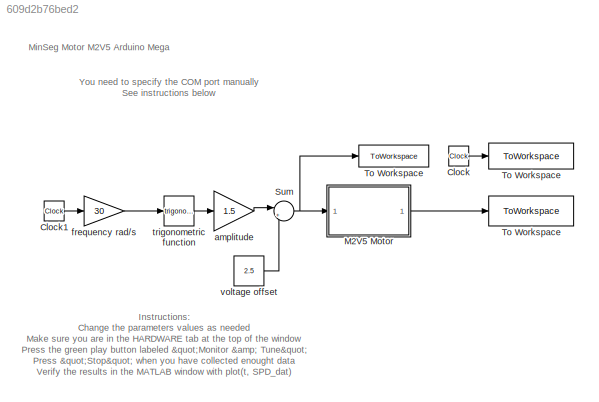
MODEL slx_609d2b76bed2
KIND model
CONFIG AbsTol = auto
CONFIG EnableMultiTasking = on
CONFIG FixedStep = .004
CONFIG MaxStep = auto
CONFIG MinStep = auto
CONFIG RelTol = 1e-3
CONFIG SampleTimeConstraint = Unconstrained
CONFIG SolverName = FixedStepDiscrete
CONFIG StartTime = 0.0
CONFIG StopTime = inf
BLOCK [Clock] Clock
BLOCK [Clock] Clock1
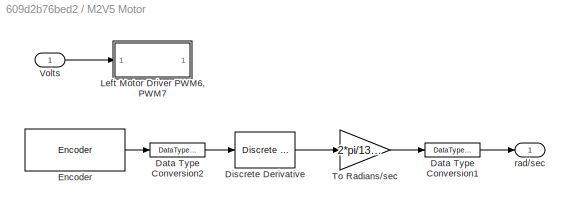
BLOCK [SubSystem] M2V5 Motor
BLOCK [DataTypeConversion] M2V5 Motor/Data Type Conversion1
  OutDataTypeStr = single
  RndMeth = Floor
  SaturateOnIntegerOverflow = off
BLOCK [DataTypeConversion] M2V5 Motor/Data Type Conversion2
  OutDataTypeStr = double
  RndMeth = Floor
  SaturateOnIntegerOverflow = off
BLOCK [Reference] M2V5 Motor/Discrete Derivative  REF=simulink/Discrete/Discrete Derivative
  SourceBlock = simulink/Discrete/Discrete Derivative
  SourceType = Discrete Derivative
BLOCK [Reference] M2V5 Motor/Encoder  REF=arduinosensorlib/Encoder
  SourceBlock = arduinosensorlib/Encoder
  SourceType = Arduino Rotary Encoder
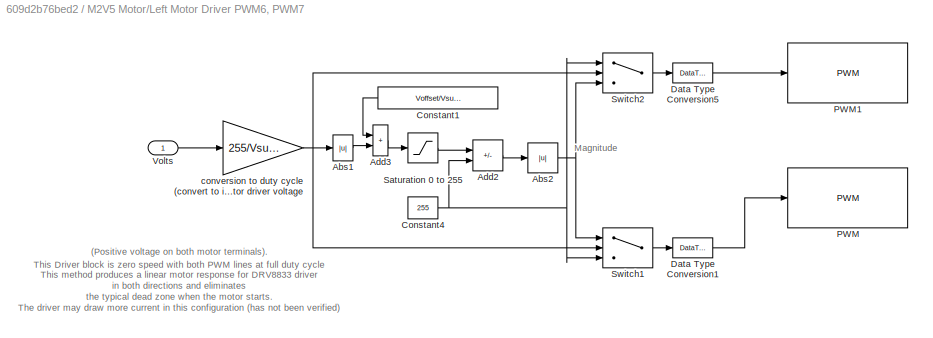
BLOCK [SubSystem] M2V5 Motor/Left Motor Driver PWM6, PWM7
BLOCK [Abs] M2V5 Motor/Left Motor Driver PWM6, PWM7/Abs1
  SaturateOnIntegerOverflow = off
BLOCK [Abs] M2V5 Motor/Left Motor Driver PWM6, PWM7/Abs2
  SaturateOnIntegerOverflow = off
BLOCK [Sum] M2V5 Motor/Left Motor Driver PWM6, PWM7/Add2
  IconShape = rectangular
  Inputs = -+
BLOCK [Sum] M2V5 Motor/Left Motor Driver PWM6, PWM7/Add3
  IconShape = rectangular
BLOCK [Constant] M2V5 Motor/Left Motor Driver PWM6, PWM7/Constant1
  NameLocation = top
  Value = Voffset/Vsupply*255
BLOCK [Constant] M2V5 Motor/Left Motor Driver PWM6, PWM7/Constant4
  Value = 255
BLOCK [DataTypeConversion] M2V5 Motor/Left Motor Driver PWM6, PWM7/Data Type Conversion1
  OutDataTypeStr = uint8
  RndMeth = Floor
  SaturateOnIntegerOverflow = off
BLOCK [DataTypeConversion] M2V5 Motor/Left Motor Driver PWM6, PWM7/Data Type Conversion5
  OutDataTypeStr = uint8
  RndMeth = Floor
  SaturateOnIntegerOverflow = off
BLOCK [Reference] M2V5 Motor/Left Motor Driver PWM6, PWM7/PWM  REF=arduinolib/PWM
  SourceBlock = arduinolib/PWM
  SourceType = Arduino PWM
BLOCK [Reference] M2V5 Motor/Left Motor Driver PWM6, PWM7/PWM1  REF=arduinolib/PWM
  SourceBlock = arduinolib/PWM
  SourceType = Arduino PWM
BLOCK [Saturate] M2V5 Motor/Left Motor Driver PWM6, PWM7/Saturation 0 to 255
  LowerLimit = 0
  UpperLimit = 255
BLOCK [Switch] M2V5 Motor/Left Motor Driver PWM6, PWM7/Switch1
  InputSameDT = off
  SaturateOnIntegerOverflow = off
BLOCK [Switch] M2V5 Motor/Left Motor Driver PWM6, PWM7/Switch2
  InputSameDT = off
  SaturateOnIntegerOverflow = off
BLOCK [Inport] M2V5 Motor/Left Motor Driver PWM6, PWM7/Volts
BLOCK [Gain] M2V5 Motor/Left Motor Driver PWM6, PWM7/conversion to duty cycle (convert to int) denominator is motor driver voltage
  Gain = 255/Vsupply
  OutDataTypeStr = int16
BLOCK [Gain] M2V5 Motor/To Radians//sec
  Gain = 2*pi/1336
  NameLocation = top
BLOCK [Inport] M2V5 Motor/Volts
BLOCK [Outport] M2V5 Motor/rad//sec
BLOCK [Sum] Sum
  Inputs = |++
BLOCK [ToWorkspace] To Workspace
  FixptAsFi = on
  MaxDataPoints = inf
  SampleTime = -1
  Save2DSignal = 2-D array (concatenate along first dimension)
  VariableName = SPD_dat
BLOCK [ToWorkspace] To Workspace 
  FixptAsFi = on
  MaxDataPoints = inf
  SampleTime = -1
  Save2DSignal = 2-D array (concatenate along first dimension)
  VariableName = t
BLOCK [ToWorkspace] To Workspace  
  FixptAsFi = on
  MaxDataPoints = inf
  SampleTime = -1
  Save2DSignal = 2-D array (concatenate along first dimension)
  VariableName = V_in
BLOCK [Gain] amplitude
  Gain = 1.5
BLOCK [Gain] frequency rad//s 
  Gain = 30
BLOCK [Trigonometry] trigonometric function 
BLOCK [Constant] voltage offset 
  Value = 2.5
ANNOTATION (root): Instructions : Change the parameters values as needed Make sure you are in the HARDWARE tab at the top of the window Press the green play button labeled " Monitor & Tune " Press "Stop" when you have collected enought data Verify the results in the MATLAB window with plot(t, SPD_dat)
ANNOTATION (root): You need to specify the COM port manually See instructions below
ANNOTATION (root): MinSeg Motor M2V5 Arduino Mega
ANNOTATION M2V5 Motor/Left Motor Driver PWM6, PWM7: Magnitude
ANNOTATION M2V5 Motor/Left Motor Driver PWM6, PWM7: This Driver block is zero speed with both PWM lines at full duty cycle (Positive voltage on both motor terminals). This method produces a linear motor response for DRV8833 driver in both directions and eliminates the typical dead zone when the motor starts. The driver may draw more current in this configuration (has not been verified) The SN754410 driver this has no effect, so the driver could alt...<+76ch>
LINE Clock1:1 -> frequency rad//s :1
LINE Clock:1 -> To Workspace :1
LINE M2V5 Motor/Data Type Conversion1:1 -> M2V5 Motor/rad//sec:1
LINE M2V5 Motor/Data Type Conversion2:1 -> M2V5 Motor/Discrete Derivative:1
LINE M2V5 Motor/Discrete Derivative:1 -> M2V5 Motor/To Radians//sec:1
LINE M2V5 Motor/Encoder:1 -> M2V5 Motor/Data Type Conversion2:1
LINE M2V5 Motor/Left Motor Driver PWM6, PWM7/Abs1:1 -> M2V5 Motor/Left Motor Driver PWM6, PWM7/Add3:2
NET M2V5 Motor/Left Motor Driver PWM6, PWM7/Abs2:1 -> M2V5 Motor/Left Motor Driver PWM6, PWM7/Switch1:1, M2V5 Motor/Left Motor Driver PWM6, PWM7/Switch2:3
LINE M2V5 Motor/Left Motor Driver PWM6, PWM7/Add2:1 -> M2V5 Motor/Left Motor Driver PWM6, PWM7/Abs2:1
LINE M2V5 Motor/Left Motor Driver PWM6, PWM7/Add3:1 -> M2V5 Motor/Left Motor Driver PWM6, PWM7/Saturation 0 to 255:1
LINE M2V5 Motor/Left Motor Driver PWM6, PWM7/Constant1:1 -> M2V5 Motor/Left Motor Driver PWM6, PWM7/Add3:1
NET M2V5 Motor/Left Motor Driver PWM6, PWM7/Constant4:1 -> M2V5 Motor/Left Motor Driver PWM6, PWM7/Add2:2, M2V5 Motor/Left Motor Driver PWM6, PWM7/Switch1:3, M2V5 Motor/Left Motor Driver PWM6, PWM7/Switch2:1
LINE M2V5 Motor/Left Motor Driver PWM6, PWM7/Data Type Conversion1:1 -> M2V5 Motor/Left Motor Driver PWM6, PWM7/PWM:1
LINE M2V5 Motor/Left Motor Driver PWM6, PWM7/Data Type Conversion5:1 -> M2V5 Motor/Left Motor Driver PWM6, PWM7/PWM1:1
LINE M2V5 Motor/Left Motor Driver PWM6, PWM7/Saturation 0 to 255:1 -> M2V5 Motor/Left Motor Driver PWM6, PWM7/Add2:1
LINE M2V5 Motor/Left Motor Driver PWM6, PWM7/Switch1:1 -> M2V5 Motor/Left Motor Driver PWM6, PWM7/Data Type Conversion1:1
LINE M2V5 Motor/Left Motor Driver PWM6, PWM7/Switch2:1 -> M2V5 Motor/Left Motor Driver PWM6, PWM7/Data Type Conversion5:1
LINE M2V5 Motor/Left Motor Driver PWM6, PWM7/Volts:1 -> M2V5 Motor/Left Motor Driver PWM6, PWM7/conversion to duty cycle (convert to int) denominator is motor driver voltage:1
NET M2V5 Motor/Left Motor Driver PWM6, PWM7/conversion to duty cycle (convert to int) denominator is motor driver voltage:1 -> M2V5 Motor/Left Motor Driver PWM6, PWM7/Abs1:1, M2V5 Motor/Left Motor Driver PWM6, PWM7/Switch1:2, M2V5 Motor/Left Motor Driver PWM6, PWM7/Switch2:2
LINE M2V5 Motor/To Radians//sec:1 -> M2V5 Motor/Data Type Conversion1:1
LINE M2V5 Motor/Volts:1 -> M2V5 Motor/Left Motor Driver PWM6, PWM7:1
LINE M2V5 Motor:1 -> To Workspace:1
NET Sum:1 -> M2V5 Motor:1, To Workspace  :1
LINE amplitude:1 -> Sum:1
LINE frequency rad//s :1 -> trigonometric function :1
LINE trigonometric function :1 -> amplitude:1
LINE voltage offset :1 -> Sum:2
note: NET lines group one-source signal fan-out (src -> all destinations, sorted); 1:1 wires keep LINE
